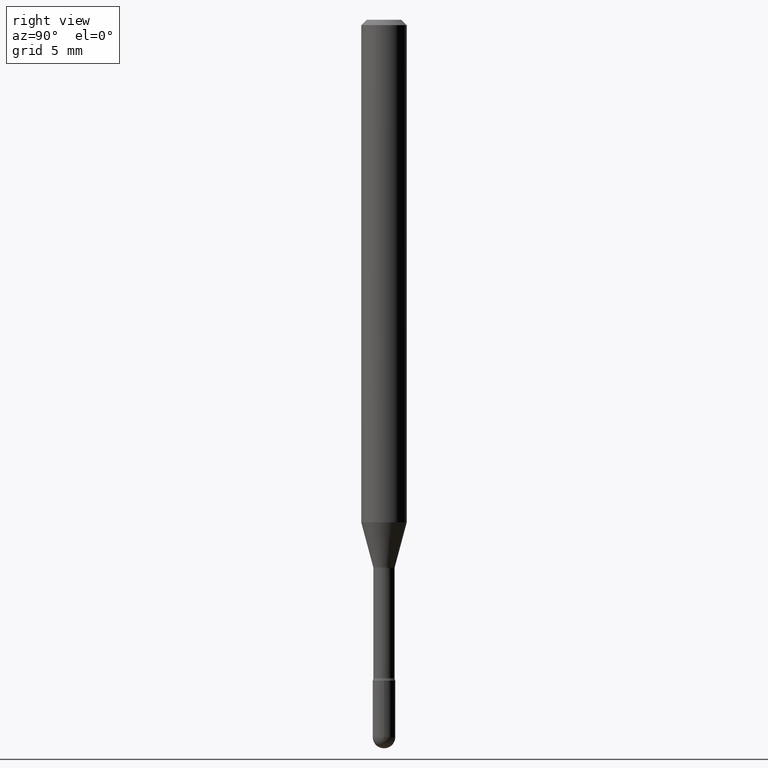
[diagram: clean part render]
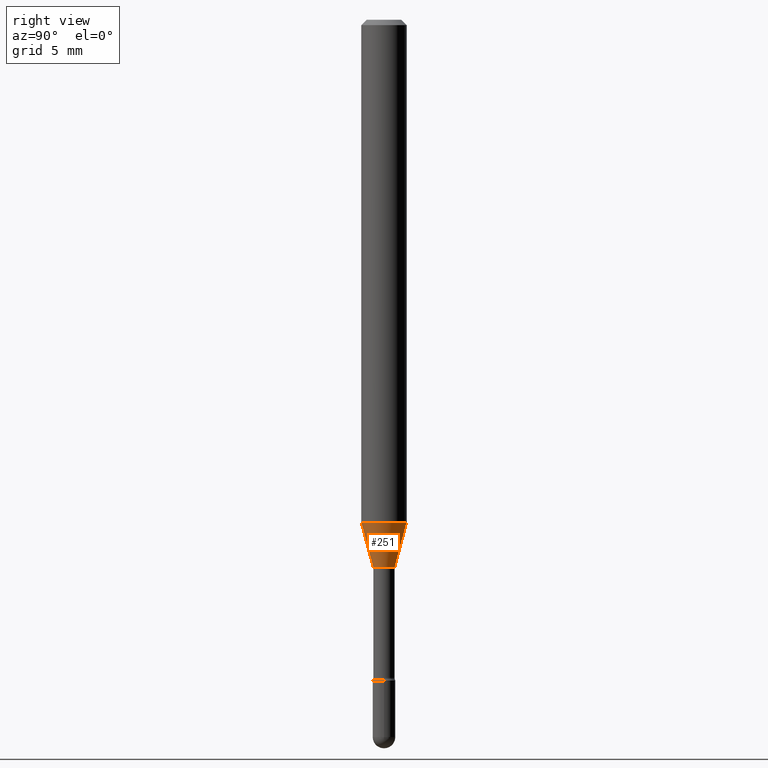
[diagram: same view with one face highlighted and labeled with its STEP entity id]
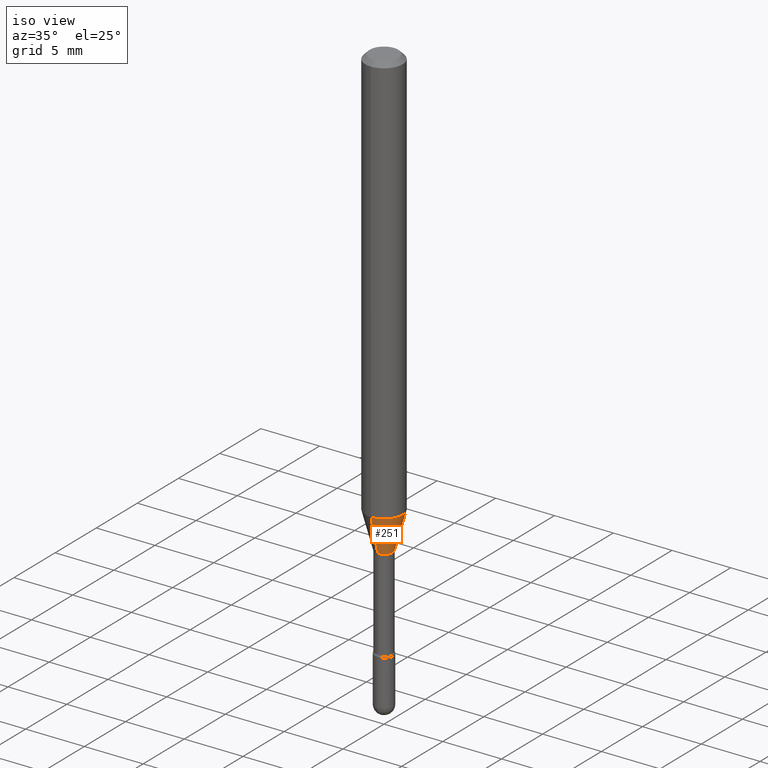
[diagram: same view with one face highlighted and labeled with its STEP entity id]
A machine part, right view. The second image highlights one B-rep face of the part: STEP entity #251.
A second angle (iso view) of the same face is appended — the face is thin or edge-on in the first view.
In plain terms, the highlighted conical surface has half-angle 15 deg.
Its self-contained STEP definition (entity closure, byte-faithful):
#14 = AXIS2_PLACEMENT_3D ( 'NONE', #401, #169, #529 ) ;
#20 = DIRECTION ( 'NONE',  ( -2.445449554586822988E-29, 3.491508908227663846E-15, 1.000000000000000000 ) ) ;
#32 = ORIENTED_EDGE ( 'NONE', *, *, #454, .F. ) ;
#37 = EDGE_CURVE ( 'NONE', #120, #229, #253, .T. ) ;
#61 = ORIENTED_EDGE ( 'NONE', *, *, #37, .T. ) ;
#63 = ORIENTED_EDGE ( 'NONE', *, *, #370, .T. ) ;
#120 = VERTEX_POINT ( 'NONE', #371 ) ;
#129 = CARTESIAN_POINT ( 'NONE',  ( 3.673291439443893536E-29, -5.244569350972242727E-15, -1.502092501787273271 ) ) ;
#142 = LINE ( 'NONE', #227, #158 ) ;
#146 = CARTESIAN_POINT ( 'NONE',  ( 4.440892098500961428E-16, 0.06249999999999514971, -1.379536105567578552 ) ) ;
#158 = VECTOR ( 'NONE', #543, 39.37007874015748854 ) ;
#169 = DIRECTION ( 'NONE',  ( -2.445449554586822988E-29, 3.491508908227663846E-15, 1.000000000000000000 ) ) ;
#189 = DIRECTION ( 'NONE',  ( -6.982962677686265922E-15, -1.000000000000000000, 4.370956789862821150E-15 ) ) ;
#227 = CARTESIAN_POINT ( 'NONE',  ( 2.107548809652055165E-16, 0.02966111260565873833, -1.502092501787273271 ) ) ;
#228 = AXIS2_PLACEMENT_3D ( 'NONE', #499, #20, #189 ) ;
#229 = VERTEX_POINT ( 'NONE', #476 ) ;
#233 = LINE ( 'NONE', #363, #472 ) ;
#251 = ADVANCED_FACE ( 'NONE', ( #433 ), #291, .T. ) ;
#253 = CIRCLE ( 'NONE', #14, 0.02966111260566398414 ) ;
#291 = CONICAL_SURFACE ( 'NONE', #308, 0.02966111260566398414, 0.2617993877991500740 ) ;
#302 = DIRECTION ( 'NONE',  ( -2.445449554586822988E-29, 3.491508908227663846E-15, 1.000000000000000000 ) ) ;
#308 = AXIS2_PLACEMENT_3D ( 'NONE', #129, #302, #492 ) ;
#319 = CIRCLE ( 'NONE', #228, 0.06250000000000000000 ) ;
#323 = EDGE_LOOP ( 'NONE', ( #61, #63, #32, #372 ) ) ;
#357 = CARTESIAN_POINT ( 'NONE',  ( -4.364351673553580935E-16, -0.06250000000000484335, -1.379536105567578108 ) ) ;
#363 = CARTESIAN_POINT ( 'NONE',  ( -2.071224423039644956E-16, -0.02966111260566922994, -1.502092501787273271 ) ) ;
#370 = EDGE_CURVE ( 'NONE', #229, #473, #142, .T. ) ;
#371 = CARTESIAN_POINT ( 'NONE',  ( -2.071224423039644956E-16, -0.02966111260566922994, -1.502092501787273271 ) ) ;
#372 = ORIENTED_EDGE ( 'NONE', *, *, #510, .F. ) ;
#373 = DIRECTION ( 'NONE',  ( -1.807323732225328562E-15, -0.2588190451025179639, 0.9659258262890690894 ) ) ;
#401 = CARTESIAN_POINT ( 'NONE',  ( 3.673291439443893536E-29, -5.244569350972242727E-15, -1.502092501787273271 ) ) ;
#433 = FACE_OUTER_BOUND ( 'NONE', #323, .T. ) ;
#454 = EDGE_CURVE ( 'NONE', #464, #473, #319, .T. ) ;
#464 = VERTEX_POINT ( 'NONE', #357 ) ;
#472 = VECTOR ( 'NONE', #373, 39.37007874015748854 ) ;
#473 = VERTEX_POINT ( 'NONE', #146 ) ;
#476 = CARTESIAN_POINT ( 'NONE',  ( 3.274220454076509529E-16, 0.02966111260565873833, -1.502092501787273271 ) ) ;
#492 = DIRECTION ( 'NONE',  ( -6.982962677686265922E-15, -1.000000000000000000, 0.000000000000000000 ) ) ;
#499 = CARTESIAN_POINT ( 'NONE',  ( 3.373585954896674557E-29, -4.816662601810898032E-15, -1.379536105567578330 ) ) ;
#510 = EDGE_CURVE ( 'NONE', #120, #464, #233, .T. ) ;
#529 = DIRECTION ( 'NONE',  ( -6.982962677686265922E-15, -1.000000000000000000, 0.000000000000000000 ) ) ;
#543 = DIRECTION ( 'NONE',  ( 1.839019923739598738E-15, 0.2588190451025247363, 0.9659258262890673130 ) ) ;